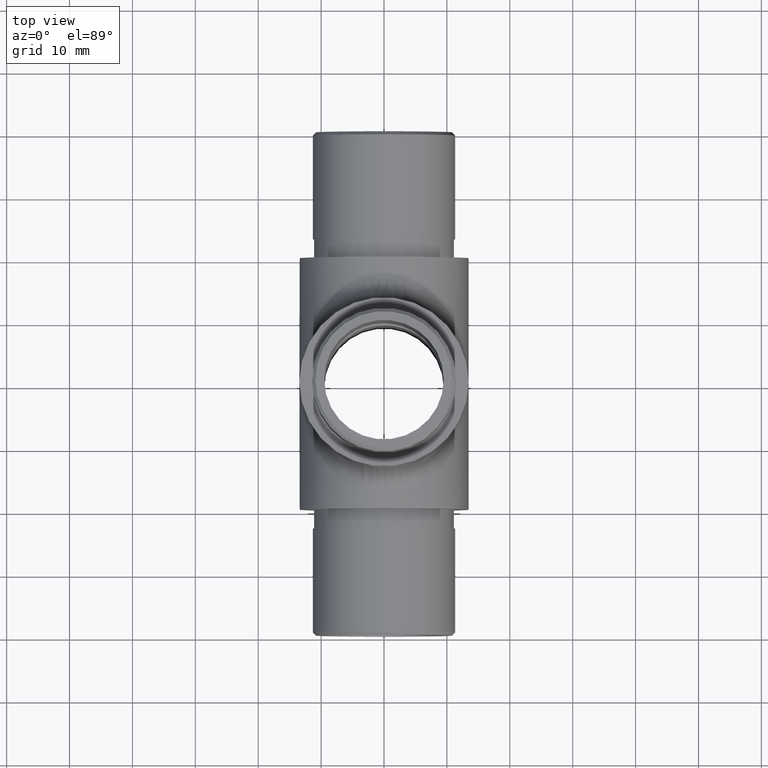
[diagram: clean part render]
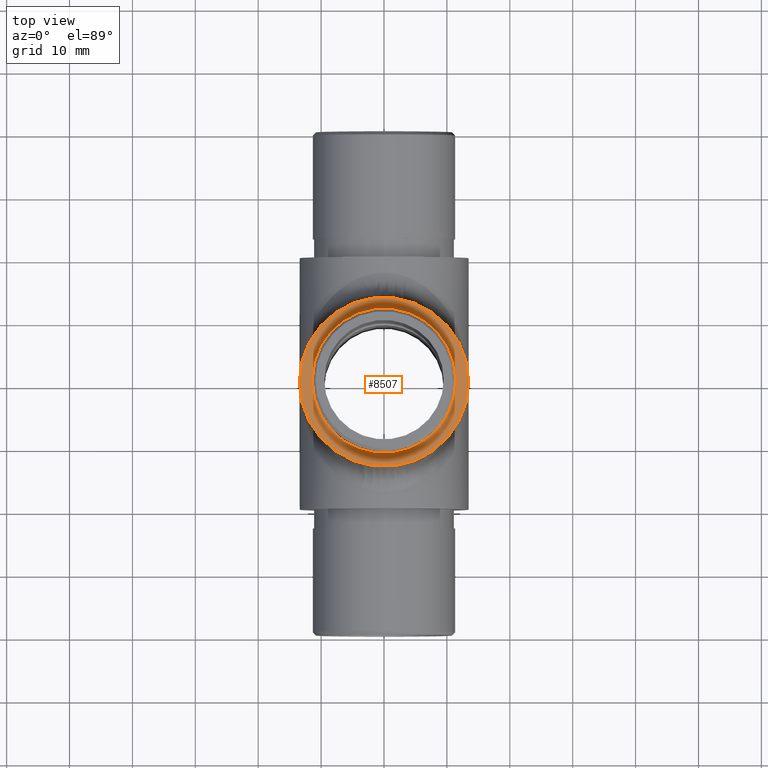
[diagram: same view with one face highlighted and labeled with its STEP entity id]
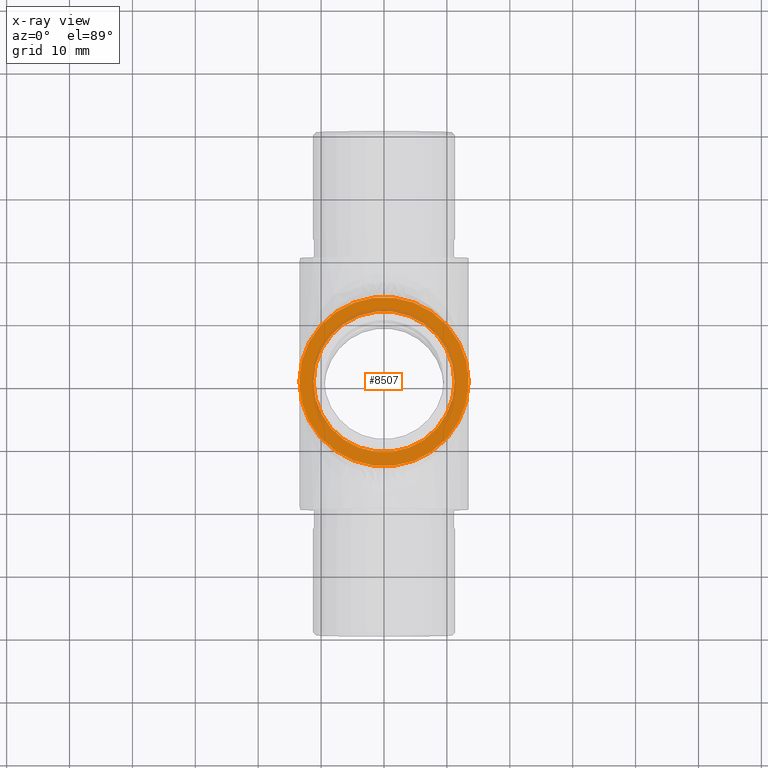
[diagram: x-ray of the same camera — body ghosted, the highlighted face saturated]
A machine part, top view. The second image highlights one B-rep face of the part: STEP entity #8507.
The next image is the same camera in x-ray: the body ghosted, the highlighted face saturated — about 10% of this face is hidden behind the body in this view.
In plain terms, the highlighted planar face has unit normal (0, 0, 1).
Its self-contained STEP definition (entity closure, byte-faithful):
#663 = DIRECTION ( 'NONE',  ( 1.000000000000000000, 0.0000000000000000000, 0.0000000000000000000 ) ) ;
#1342 = DIRECTION ( 'NONE',  ( 0.0000000000000000000, 0.0000000000000000000, 1.000000000000000000 ) ) ;
#1556 = CIRCLE ( 'NONE', #2403, 13.45000000000000100 ) ;
#2403 = AXIS2_PLACEMENT_3D ( 'NONE', #8157, #7002, #3000 ) ;
#2758 = ORIENTED_EDGE ( 'NONE', *, *, #4171, .F. ) ;
#2905 = FACE_OUTER_BOUND ( 'NONE', #7797, .T. ) ;
#3000 = DIRECTION ( 'NONE',  ( 1.000000000000000000, 0.0000000000000000000, 0.0000000000000000000 ) ) ;
#3622 = VERTEX_POINT ( 'NONE', #10912 ) ;
#3720 = FACE_BOUND ( 'NONE', #6607, .T. ) ;
#4171 = EDGE_CURVE ( 'NONE', #6726, #6726, #4997, .T. ) ;
#4997 = CIRCLE ( 'NONE', #7057, 11.20000000000000100 ) ;
#5703 = CARTESIAN_POINT ( 'NONE',  ( 11.20000000000000100, 0.0000000000000000000, 20.00000000000000000 ) ) ;
#6521 = CARTESIAN_POINT ( 'NONE',  ( 0.0000000000000000000, 0.0000000000000000000, 20.00000000000000000 ) ) ;
#6607 = EDGE_LOOP ( 'NONE', ( #2758 ) ) ;
#6726 = VERTEX_POINT ( 'NONE', #5703 ) ;
#7002 = DIRECTION ( 'NONE',  ( 0.0000000000000000000, 0.0000000000000000000, 1.000000000000000000 ) ) ;
#7057 = AXIS2_PLACEMENT_3D ( 'NONE', #6521, #8550, #663 ) ;
#7291 = PLANE ( 'NONE',  #12783 ) ;
#7466 = CARTESIAN_POINT ( 'NONE',  ( 0.0000000000000000000, 0.0000000000000000000, 20.00000000000000000 ) ) ;
#7568 = EDGE_CURVE ( 'NONE', #3622, #3622, #1556, .T. ) ;
#7797 = EDGE_LOOP ( 'NONE', ( #11983 ) ) ;
#8157 = CARTESIAN_POINT ( 'NONE',  ( 0.0000000000000000000, 0.0000000000000000000, 20.00000000000000000 ) ) ;
#8303 = DIRECTION ( 'NONE',  ( 1.000000000000000000, 0.0000000000000000000, -0.0000000000000000000 ) ) ;
#8507 = ADVANCED_FACE ( 'NONE', ( #2905, #3720 ), #7291, .T. ) ;
#8550 = DIRECTION ( 'NONE',  ( 0.0000000000000000000, 0.0000000000000000000, 1.000000000000000000 ) ) ;
#10912 = CARTESIAN_POINT ( 'NONE',  ( 13.45000000000000100, 0.0000000000000000000, 20.00000000000000000 ) ) ;
#11983 = ORIENTED_EDGE ( 'NONE', *, *, #7568, .T. ) ;
#12783 = AXIS2_PLACEMENT_3D ( 'NONE', #7466, #1342, #8303 ) ;